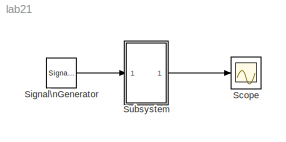
MODEL lab21
KIND model
BLOCK [Scope] Scope
  DataFormat = StructureWithTime
  NumInputPorts = 1
  Ports = [1]
BLOCK [SignalGenerator] Signal\nGenerator
  Ports = [0, 1]
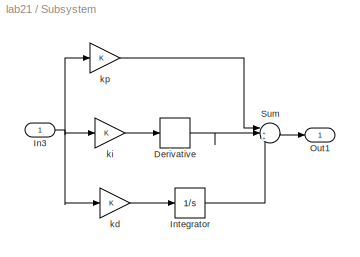
BLOCK [SubSystem] Subsystem
  MaskCallbackString = ||
  MaskDescription = gdfgdf
  MaskEnableString = on,on,on
  MaskHelp = gdfgdf
  MaskIconFrame = on
  MaskIconOpaque = on
  MaskIconRotate = none
  MaskIconUnits = autoscale
  MaskPromptString = kp|ki|kd
  MaskStyleString = edit,edit,edit
  MaskTabNameString = ,,
  MaskToolTipString = on,on,on
  MaskTunableValueString = on,on,on
  MaskValueString = 0|0|0
  MaskVarAliasString = ,,
  MaskVariables = kp=@1;ki=@2;kd=@3;
  MaskVisibilityString = on,on,on
  MinAlgLoopOccurrences = off
  Ports = [1, 1]
  RTWSystemCode = Auto
  TreatAsAtomicUnit = off
BLOCK [Derivative] Subsystem/Derivative
BLOCK [Inport] Subsystem/In3
  IconDisplay = Port number
  LatchInput = off
  Port = 1
BLOCK [Integrator] Subsystem/Integrator
  Ports = [1, 1]
BLOCK [Outport] Subsystem/Out1
  IconDisplay = Port number
BLOCK [Sum] Subsystem/Sum
  IconShape = round
  InputSameDT = off
  Inputs = |+++
  OutDataTypeMode = Inherit via internal rule
  Ports = [3, 1]
  SaturateOnIntegerOverflow = off
BLOCK [Gain] Subsystem/kd
  OutDataTypeMode = Inherit via internal rule
  ParameterDataTypeMode = Inherit via internal rule
  SaturateOnIntegerOverflow = off
BLOCK [Gain] Subsystem/ki
  OutDataTypeMode = Inherit via internal rule
  ParameterDataTypeMode = Inherit via internal rule
  SaturateOnIntegerOverflow = off
BLOCK [Gain] Subsystem/kp
  OutDataTypeMode = Inherit via internal rule
  ParameterDataTypeMode = Inherit via internal rule
  SaturateOnIntegerOverflow = off
LINE Signal\nGenerator:1 -> Subsystem:1
LINE Subsystem/Derivative:1 -> Subsystem/Sum:2
NET Subsystem/In3:1 -> Subsystem/kd:1, Subsystem/ki:1, Subsystem/kp:1
LINE Subsystem/Integrator:1 -> Subsystem/Sum:3
LINE Subsystem/Sum:1 -> Subsystem/Out1:1
LINE Subsystem/kd:1 -> Subsystem/Integrator:1
LINE Subsystem/ki:1 -> Subsystem/Derivative:1
LINE Subsystem/kp:1 -> Subsystem/Sum:1
LINE Subsystem:1 -> Scope:1
note: NET lines group one-source signal fan-out (src -> all destinations, sorted); 1:1 wires keep LINE
